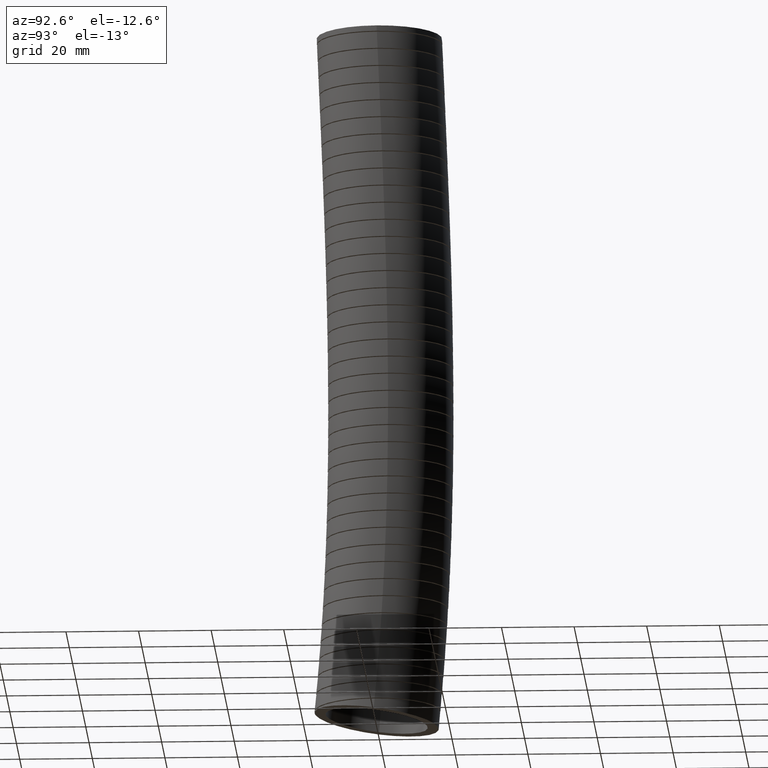
[diagram: clean part render]
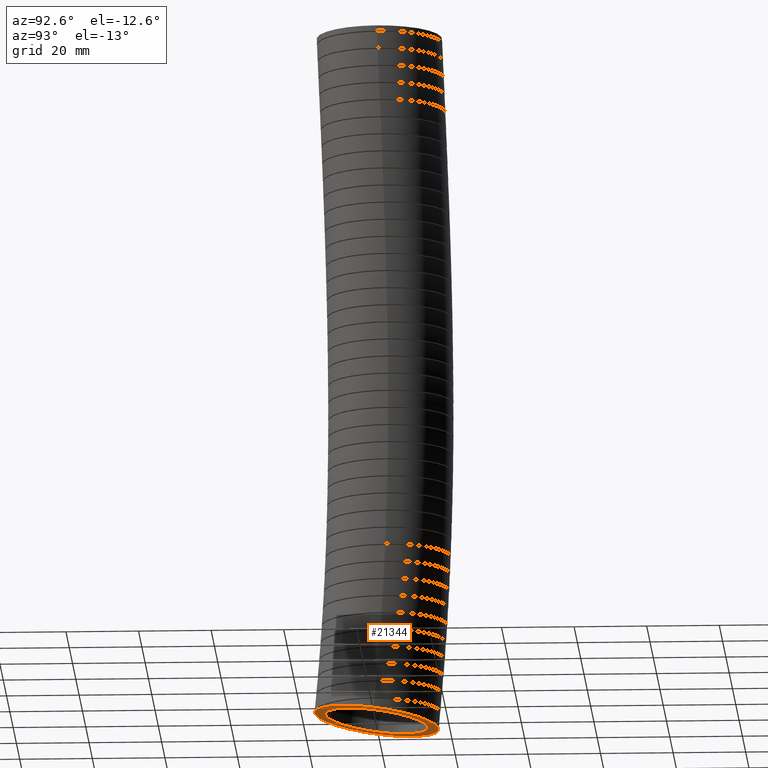
[diagram: same view with one face highlighted and labeled with its STEP entity id]
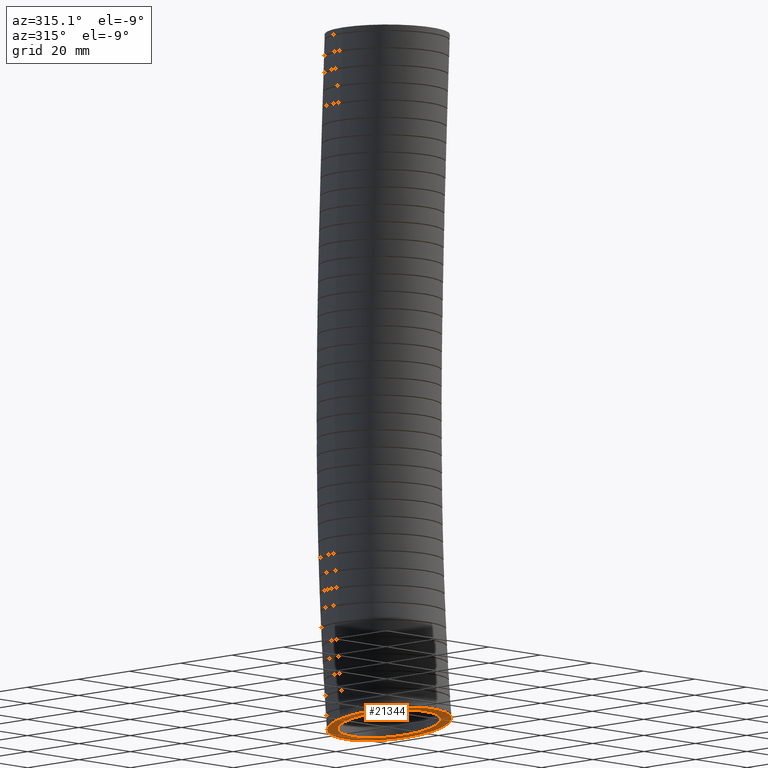
[diagram: same view with one face highlighted and labeled with its STEP entity id]
A machine part, auxiliary view. The second image highlights one B-rep face of the part: STEP entity #21344.
A second angle (auxiliary view) of the same face is appended — the face is thin or edge-on in the first view.
In plain terms, the highlighted planar face has unit normal (0, 0.135, 0.9909).
Its self-contained STEP definition (entity closure, byte-faithful):
#7514 = CARTESIAN_POINT ( 'NONE',  ( -0.6799999999999999400, -0.02999999999999994300, -7.570000000000000300 ) ) ;
#7812 = CARTESIAN_POINT ( 'NONE',  ( 0.6799999999999998300, -0.02999999999999998800, -7.570000000000000300 ) ) ;
#7830 = CARTESIAN_POINT ( 'NONE',  ( 0.0000000000000000000, -0.02999999999999998800, -7.570000000000000300 ) ) ;
#7895 = DIRECTION ( 'NONE',  ( 1.000000000000000000, 0.0000000000000000000, 0.0000000000000000000 ) ) ;
#7896 = DIRECTION ( 'NONE',  ( 0.0000000000000000000, 0.1349512189538165900, 0.9908522435271967000 ) ) ;
#7897 = AXIS2_PLACEMENT_3D ( 'NONE', #7830, #7896, #7895 ) ;
#7898 = CIRCLE ( 'NONE', #7897, 0.6799999999999998300 ) ;
#8795 = CARTESIAN_POINT ( 'NONE',  ( -0.5600000000000000500, -0.02999999999999995700, -7.570000000000000300 ) ) ;
#9404 = VERTEX_POINT ( 'NONE', #7514 ) ;
#9444 = VERTEX_POINT ( 'NONE', #7812 ) ;
#9449 = EDGE_CURVE ( 'NONE', #9404, #9444, #7898, .T. ) ;
#9604 = VERTEX_POINT ( 'NONE', #8795 ) ;
#9669 = EDGE_CURVE ( 'NONE', #9671, #9604, #12142, .T. ) ;
#9671 = VERTEX_POINT ( 'NONE', #12138 ) ;
#9797 = EDGE_CURVE ( 'NONE', #9444, #9404, #13000, .T. ) ;
#12138 = CARTESIAN_POINT ( 'NONE',  ( 0.5599999999999999400, -0.02999999999999998800, -7.570000000000000300 ) ) ;
#12139 = DIRECTION ( 'NONE',  ( 1.000000000000000000, 0.0000000000000000000, 0.0000000000000000000 ) ) ;
#12140 = DIRECTION ( 'NONE',  ( 0.0000000000000000000, 0.1349512189538165900, 0.9908522435271967000 ) ) ;
#12141 = AXIS2_PLACEMENT_3D ( 'NONE', #12149, #12140, #12139 ) ;
#12142 = CIRCLE ( 'NONE', #12141, 0.5599999999999999400 ) ;
#12149 = CARTESIAN_POINT ( 'NONE',  ( 0.0000000000000000000, -0.02999999999999998800, -7.570000000000000300 ) ) ;
#12994 = DIRECTION ( 'NONE',  ( 1.000000000000000000, 0.0000000000000000000, 0.0000000000000000000 ) ) ;
#12996 = DIRECTION ( 'NONE',  ( 0.0000000000000000000, 0.1349512189538165900, 0.9908522435271967000 ) ) ;
#12998 = AXIS2_PLACEMENT_3D ( 'NONE', #13011, #12996, #12994 ) ;
#13000 = CIRCLE ( 'NONE', #12998, 0.6799999999999998300 ) ;
#13011 = CARTESIAN_POINT ( 'NONE',  ( 0.0000000000000000000, -0.02999999999999998800, -7.570000000000000300 ) ) ;
#20305 = FACE_OUTER_BOUND ( 'NONE', #21345, .T. ) ;
#20306 = FACE_BOUND ( 'NONE', #21359, .T. ) ;
#20336 = DIRECTION ( 'NONE',  ( 1.000000000000000000, 0.0000000000000000000, 0.0000000000000000000 ) ) ;
#20337 = DIRECTION ( 'NONE',  ( 0.0000000000000000000, 0.1349512189538165700, 0.9908522435271967000 ) ) ;
#20338 = CARTESIAN_POINT ( 'NONE',  ( 0.0000000000000000000, -0.02999999999999998800, -7.570000000000000300 ) ) ;
#20339 = AXIS2_PLACEMENT_3D ( 'NONE', #20338, #20337, #20336 ) ;
#20341 = PLANE ( 'NONE',  #20339 ) ;
#20350 = CARTESIAN_POINT ( 'NONE',  ( 0.0000000000000000000, -0.02999999999999998800, -7.570000000000000300 ) ) ;
#20446 = DIRECTION ( 'NONE',  ( 1.000000000000000000, 0.0000000000000000000, 0.0000000000000000000 ) ) ;
#20447 = DIRECTION ( 'NONE',  ( 0.0000000000000000000, 0.1349512189538165900, 0.9908522435271967000 ) ) ;
#20448 = AXIS2_PLACEMENT_3D ( 'NONE', #20350, #20447, #20446 ) ;
#20449 = CIRCLE ( 'NONE', #20448, 0.5599999999999999400 ) ;
#21337 = ORIENTED_EDGE ( 'NONE', *, *, #9449, .F. ) ;
#21341 = ORIENTED_EDGE ( 'NONE', *, *, #9797, .F. ) ;
#21344 = ADVANCED_FACE ( 'NONE', ( #20306, #20305 ), #20341, .F. ) ;
#21345 = EDGE_LOOP ( 'NONE', ( #21341, #21337 ) ) ;
#21346 = ORIENTED_EDGE ( 'NONE', *, *, #21355, .T. ) ;
#21354 = ORIENTED_EDGE ( 'NONE', *, *, #9669, .T. ) ;
#21355 = EDGE_CURVE ( 'NONE', #9604, #9671, #20449, .T. ) ;
#21359 = EDGE_LOOP ( 'NONE', ( #21354, #21346 ) ) ;